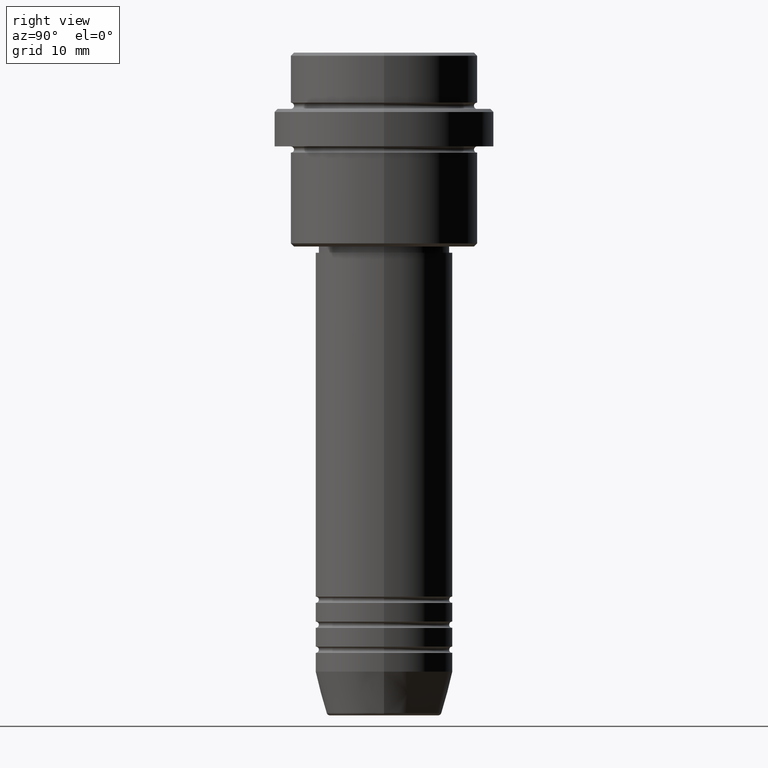
[diagram: clean part render]
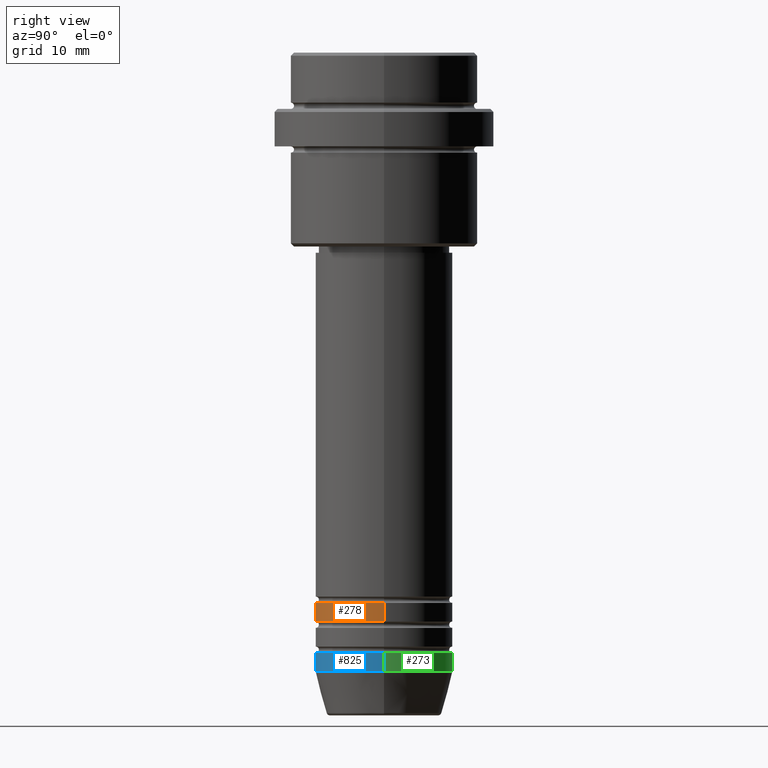
[diagram: same view with three faces highlighted in distinct colors, each labeled with its STEP entity id]
A machine part, right view with three faces highlighted in distinct colors.
Their STEP definitions:

[orange] entity #278 — the highlighted cylindrical surface (partial cylindrical patch) has radius 11 mm, axis along (-0, -0, 1).
#54 = AXIS2_PLACEMENT_3D ( 'NONE', #736, #1169, #1183 ) ;
#60 = DIRECTION ( 'NONE',  ( -0.000000000000000000, -0.000000000000000000, 1.000000000000000000 ) ) ;
#127 = DIRECTION ( 'NONE',  ( -0.000000000000000000, -0.000000000000000000, 1.000000000000000000 ) ) ;
#196 = EDGE_CURVE ( 'NONE', #351, #637, #647, .T. ) ;
#200 = ORIENTED_EDGE ( 'NONE', *, *, #1195, .F. ) ;
#229 = LINE ( 'NONE', #339, #535 ) ;
#241 = FACE_OUTER_BOUND ( 'NONE', #1365, .T. ) ;
#278 = ADVANCED_FACE ( 'NONE', ( #241 ), #344, .T. ) ;
#287 = CARTESIAN_POINT ( 'NONE',  ( 11.00000000000000000, 0.000000000000000000, -90.99999999999988631 ) ) ;
#339 = CARTESIAN_POINT ( 'NONE',  ( 11.00000000000000000, 0.000000000000000000, 0.000000000000000000 ) ) ;
#344 = CYLINDRICAL_SURFACE ( 'NONE', #957, 11.00000000000000000 ) ;
#351 = VERTEX_POINT ( 'NONE', #1173 ) ;
#360 = CARTESIAN_POINT ( 'NONE',  ( 0.000000000000000000, 0.000000000000000000, 0.000000000000000000 ) ) ;
#374 = VERTEX_POINT ( 'NONE', #287 ) ;
#385 = LINE ( 'NONE', #580, #470 ) ;
#430 = DIRECTION ( 'NONE',  ( -0.000000000000000000, -0.000000000000000000, 1.000000000000000000 ) ) ;
#470 = VECTOR ( 'NONE', #60, 1000.000000000000000 ) ;
#535 = VECTOR ( 'NONE', #430, 1000.000000000000000 ) ;
#580 = CARTESIAN_POINT ( 'NONE',  ( -11.00000000000000000, 1.347111479062088405E-15, 0.000000000000000000 ) ) ;
#585 = DIRECTION ( 'NONE',  ( 1.000000000000000000, 0.000000000000000000, 0.000000000000000000 ) ) ;
#637 = VERTEX_POINT ( 'NONE', #1130 ) ;
#647 = CIRCLE ( 'NONE', #737, 11.00000000000000000 ) ;
#669 = CIRCLE ( 'NONE', #54, 11.00000000000000000 ) ;
#736 = CARTESIAN_POINT ( 'NONE',  ( 0.000000000000000000, 0.000000000000000000, -90.99999999999988631 ) ) ;
#737 = AXIS2_PLACEMENT_3D ( 'NONE', #1249, #897, #1128 ) ;
#874 = ORIENTED_EDGE ( 'NONE', *, *, #196, .F. ) ;
#890 = ORIENTED_EDGE ( 'NONE', *, *, #1408, .T. ) ;
#897 = DIRECTION ( 'NONE',  ( -0.000000000000000000, -0.000000000000000000, 1.000000000000000000 ) ) ;
#957 = AXIS2_PLACEMENT_3D ( 'NONE', #360, #127, #585 ) ;
#1128 = DIRECTION ( 'NONE',  ( 1.000000000000000000, 0.000000000000000000, 0.000000000000000000 ) ) ;
#1130 = CARTESIAN_POINT ( 'NONE',  ( 11.00000000000000000, 0.000000000000000000, -87.99999999999988631 ) ) ;
#1169 = DIRECTION ( 'NONE',  ( -0.000000000000000000, -0.000000000000000000, 1.000000000000000000 ) ) ;
#1173 = CARTESIAN_POINT ( 'NONE',  ( -11.00000000000000000, 1.347111479062088405E-15, -87.99999999999988631 ) ) ;
#1174 = ORIENTED_EDGE ( 'NONE', *, *, #1344, .T. ) ;
#1183 = DIRECTION ( 'NONE',  ( 1.000000000000000000, 0.000000000000000000, 0.000000000000000000 ) ) ;
#1195 = EDGE_CURVE ( 'NONE', #1297, #351, #385, .T. ) ;
#1249 = CARTESIAN_POINT ( 'NONE',  ( 0.000000000000000000, 0.000000000000000000, -87.99999999999988631 ) ) ;
#1288 = CARTESIAN_POINT ( 'NONE',  ( -11.00000000000000000, 1.347111479062088405E-15, -90.99999999999988631 ) ) ;
#1297 = VERTEX_POINT ( 'NONE', #1288 ) ;
#1344 = EDGE_CURVE ( 'NONE', #1297, #374, #669, .T. ) ;
#1365 = EDGE_LOOP ( 'NONE', ( #200, #1174, #890, #874 ) ) ;
#1408 = EDGE_CURVE ( 'NONE', #374, #637, #229, .T. ) ;

[blue] entity #825 — the highlighted cylindrical surface (partial cylindrical patch) has radius 11 mm, axis along (-0, -0, 1).
#16 = VERTEX_POINT ( 'NONE', #645 ) ;
#56 = AXIS2_PLACEMENT_3D ( 'NONE', #1252, #923, #1361 ) ;
#69 = LINE ( 'NONE', #501, #1312 ) ;
#88 = CYLINDRICAL_SURFACE ( 'NONE', #392, 11.00000000000000000 ) ;
#159 = CARTESIAN_POINT ( 'NONE',  ( 0.000000000000000000, 0.000000000000000000, -99.00000000000000000 ) ) ;
#178 = CARTESIAN_POINT ( 'NONE',  ( 11.00000000000000000, 0.000000000000000000, -99.00000000000000000 ) ) ;
#181 = DIRECTION ( 'NONE',  ( -0.000000000000000000, -0.000000000000000000, 1.000000000000000000 ) ) ;
#206 = CARTESIAN_POINT ( 'NONE',  ( -11.00000000000000000, 1.347111479062088405E-15, -96.00000000000000000 ) ) ;
#281 = DIRECTION ( 'NONE',  ( 1.000000000000000000, 0.000000000000000000, 0.000000000000000000 ) ) ;
#317 = VERTEX_POINT ( 'NONE', #178 ) ;
#380 = ORIENTED_EDGE ( 'NONE', *, *, #658, .T. ) ;
#384 = EDGE_LOOP ( 'NONE', ( #1399, #380, #1258, #1090 ) ) ;
#386 = DIRECTION ( 'NONE',  ( -0.000000000000000000, -0.000000000000000000, 1.000000000000000000 ) ) ;
#392 = AXIS2_PLACEMENT_3D ( 'NONE', #402, #181, #543 ) ;
#402 = CARTESIAN_POINT ( 'NONE',  ( 0.000000000000000000, 0.000000000000000000, 0.000000000000000000 ) ) ;
#404 = EDGE_CURVE ( 'NONE', #16, #842, #69, .T. ) ;
#469 = CIRCLE ( 'NONE', #56, 11.00000000000000000 ) ;
#501 = CARTESIAN_POINT ( 'NONE',  ( -11.00000000000000000, 1.347111479062088405E-15, 0.000000000000000000 ) ) ;
#508 = CARTESIAN_POINT ( 'NONE',  ( 11.00000000000000000, 0.000000000000000000, -96.00000000000000000 ) ) ;
#543 = DIRECTION ( 'NONE',  ( 1.000000000000000000, 0.000000000000000000, 0.000000000000000000 ) ) ;
#645 = CARTESIAN_POINT ( 'NONE',  ( -11.00000000000000000, 1.347111479062088405E-15, -99.00000000000000000 ) ) ;
#658 = EDGE_CURVE ( 'NONE', #16, #317, #1246, .T. ) ;
#755 = EDGE_CURVE ( 'NONE', #842, #817, #469, .T. ) ;
#817 = VERTEX_POINT ( 'NONE', #508 ) ;
#825 = ADVANCED_FACE ( 'NONE', ( #840 ), #88, .T. ) ;
#840 = FACE_OUTER_BOUND ( 'NONE', #384, .T. ) ;
#842 = VERTEX_POINT ( 'NONE', #206 ) ;
#849 = DIRECTION ( 'NONE',  ( -0.000000000000000000, -0.000000000000000000, 1.000000000000000000 ) ) ;
#923 = DIRECTION ( 'NONE',  ( -0.000000000000000000, -0.000000000000000000, 1.000000000000000000 ) ) ;
#934 = AXIS2_PLACEMENT_3D ( 'NONE', #159, #386, #281 ) ;
#1052 = VECTOR ( 'NONE', #849, 1000.000000000000000 ) ;
#1067 = DIRECTION ( 'NONE',  ( -0.000000000000000000, -0.000000000000000000, 1.000000000000000000 ) ) ;
#1085 = LINE ( 'NONE', #1395, #1052 ) ;
#1090 = ORIENTED_EDGE ( 'NONE', *, *, #755, .F. ) ;
#1246 = CIRCLE ( 'NONE', #934, 11.00000000000000000 ) ;
#1252 = CARTESIAN_POINT ( 'NONE',  ( 0.000000000000000000, 0.000000000000000000, -96.00000000000000000 ) ) ;
#1258 = ORIENTED_EDGE ( 'NONE', *, *, #1363, .T. ) ;
#1312 = VECTOR ( 'NONE', #1067, 1000.000000000000000 ) ;
#1361 = DIRECTION ( 'NONE',  ( 1.000000000000000000, 0.000000000000000000, 0.000000000000000000 ) ) ;
#1363 = EDGE_CURVE ( 'NONE', #317, #817, #1085, .T. ) ;
#1395 = CARTESIAN_POINT ( 'NONE',  ( 11.00000000000000000, 0.000000000000000000, 0.000000000000000000 ) ) ;
#1399 = ORIENTED_EDGE ( 'NONE', *, *, #404, .F. ) ;

[green] entity #273 — the highlighted cylindrical surface (partial cylindrical patch) has radius 11 mm, axis along (-0, -0, 1).
#16 = VERTEX_POINT ( 'NONE', #645 ) ;
#49 = ORIENTED_EDGE ( 'NONE', *, *, #687, .T. ) ;
#69 = LINE ( 'NONE', #501, #1312 ) ;
#70 = DIRECTION ( 'NONE',  ( 1.000000000000000000, 0.000000000000000000, 0.000000000000000000 ) ) ;
#142 = CYLINDRICAL_SURFACE ( 'NONE', #626, 11.00000000000000000 ) ;
#178 = CARTESIAN_POINT ( 'NONE',  ( 11.00000000000000000, 0.000000000000000000, -99.00000000000000000 ) ) ;
#206 = CARTESIAN_POINT ( 'NONE',  ( -11.00000000000000000, 1.347111479062088405E-15, -96.00000000000000000 ) ) ;
#234 = AXIS2_PLACEMENT_3D ( 'NONE', #1374, #1274, #70 ) ;
#273 = ADVANCED_FACE ( 'NONE', ( #913 ), #142, .T. ) ;
#317 = VERTEX_POINT ( 'NONE', #178 ) ;
#368 = DIRECTION ( 'NONE',  ( -0.000000000000000000, -0.000000000000000000, 1.000000000000000000 ) ) ;
#404 = EDGE_CURVE ( 'NONE', #16, #842, #69, .T. ) ;
#484 = DIRECTION ( 'NONE',  ( 1.000000000000000000, 0.000000000000000000, 0.000000000000000000 ) ) ;
#501 = CARTESIAN_POINT ( 'NONE',  ( -11.00000000000000000, 1.347111479062088405E-15, 0.000000000000000000 ) ) ;
#508 = CARTESIAN_POINT ( 'NONE',  ( 11.00000000000000000, 0.000000000000000000, -96.00000000000000000 ) ) ;
#626 = AXIS2_PLACEMENT_3D ( 'NONE', #1228, #1341, #484 ) ;
#645 = CARTESIAN_POINT ( 'NONE',  ( -11.00000000000000000, 1.347111479062088405E-15, -99.00000000000000000 ) ) ;
#671 = CIRCLE ( 'NONE', #835, 11.00000000000000000 ) ;
#687 = EDGE_CURVE ( 'NONE', #317, #16, #671, .T. ) ;
#817 = VERTEX_POINT ( 'NONE', #508 ) ;
#835 = AXIS2_PLACEMENT_3D ( 'NONE', #1369, #368, #1257 ) ;
#842 = VERTEX_POINT ( 'NONE', #206 ) ;
#849 = DIRECTION ( 'NONE',  ( -0.000000000000000000, -0.000000000000000000, 1.000000000000000000 ) ) ;
#913 = FACE_OUTER_BOUND ( 'NONE', #1259, .T. ) ;
#1052 = VECTOR ( 'NONE', #849, 1000.000000000000000 ) ;
#1067 = DIRECTION ( 'NONE',  ( -0.000000000000000000, -0.000000000000000000, 1.000000000000000000 ) ) ;
#1085 = LINE ( 'NONE', #1395, #1052 ) ;
#1197 = ORIENTED_EDGE ( 'NONE', *, *, #1272, .F. ) ;
#1222 = CIRCLE ( 'NONE', #234, 11.00000000000000000 ) ;
#1228 = CARTESIAN_POINT ( 'NONE',  ( 0.000000000000000000, 0.000000000000000000, 0.000000000000000000 ) ) ;
#1255 = ORIENTED_EDGE ( 'NONE', *, *, #404, .T. ) ;
#1257 = DIRECTION ( 'NONE',  ( 1.000000000000000000, 0.000000000000000000, 0.000000000000000000 ) ) ;
#1259 = EDGE_LOOP ( 'NONE', ( #49, #1255, #1197, #1276 ) ) ;
#1272 = EDGE_CURVE ( 'NONE', #817, #842, #1222, .T. ) ;
#1274 = DIRECTION ( 'NONE',  ( -0.000000000000000000, -0.000000000000000000, 1.000000000000000000 ) ) ;
#1276 = ORIENTED_EDGE ( 'NONE', *, *, #1363, .F. ) ;
#1312 = VECTOR ( 'NONE', #1067, 1000.000000000000000 ) ;
#1341 = DIRECTION ( 'NONE',  ( -0.000000000000000000, -0.000000000000000000, 1.000000000000000000 ) ) ;
#1363 = EDGE_CURVE ( 'NONE', #317, #817, #1085, .T. ) ;
#1369 = CARTESIAN_POINT ( 'NONE',  ( 0.000000000000000000, 0.000000000000000000, -99.00000000000000000 ) ) ;
#1374 = CARTESIAN_POINT ( 'NONE',  ( 0.000000000000000000, 0.000000000000000000, -96.00000000000000000 ) ) ;
#1395 = CARTESIAN_POINT ( 'NONE',  ( 11.00000000000000000, 0.000000000000000000, 0.000000000000000000 ) ) ;